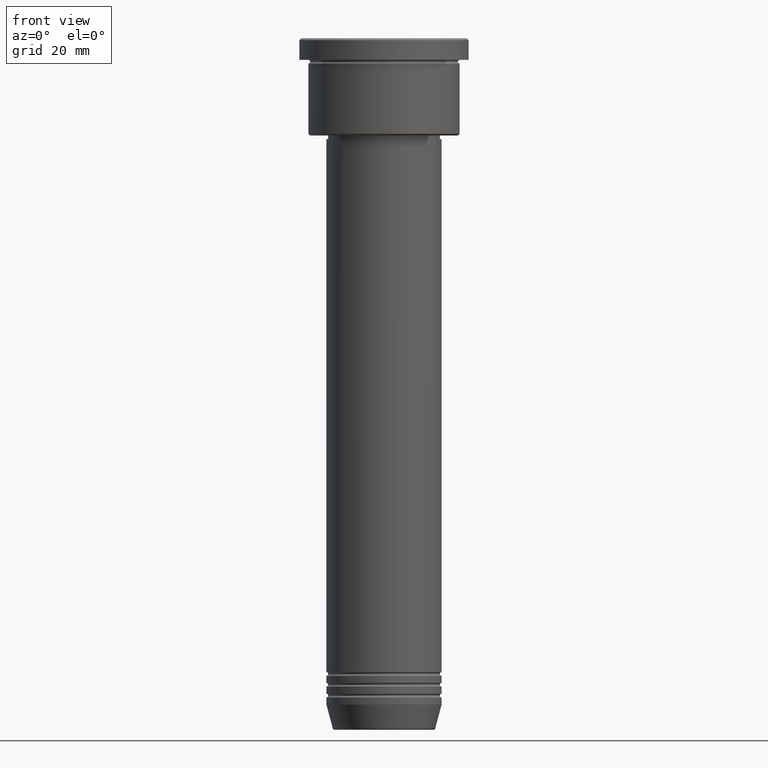
[diagram: clean part render]
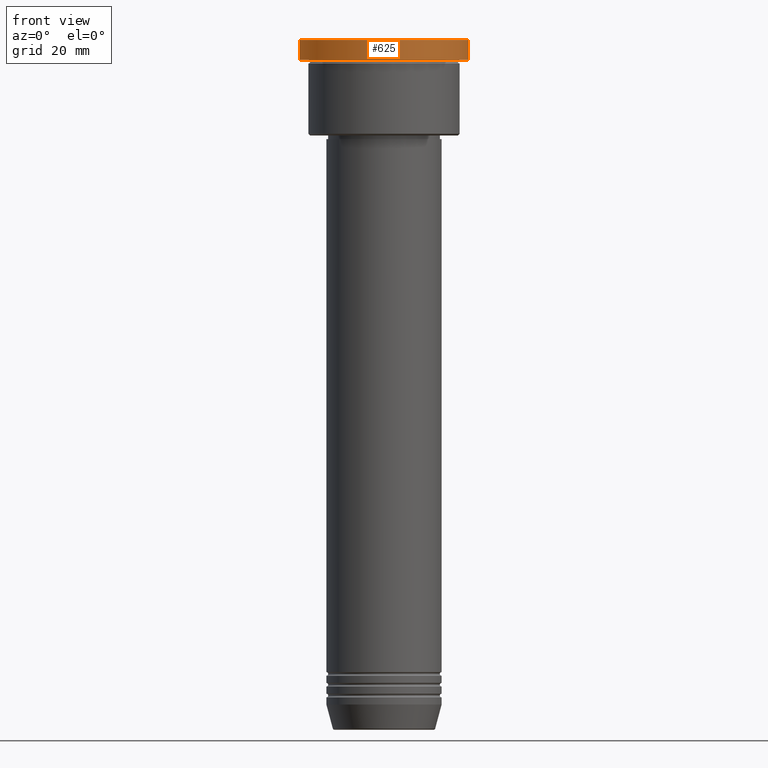
[diagram: same view with one face highlighted and labeled with its STEP entity id]
A machine part, front view. The second image highlights one B-rep face of the part: STEP entity #625.
In plain terms, the highlighted cylindrical surface (partial cylindrical patch) has radius 23.5 mm, axis along (-0, -0, 1).
Its self-contained STEP definition (entity closure, byte-faithful):
#24 = DIRECTION ( 'NONE',  ( 1.000000000000000000, 0.000000000000000000, 0.000000000000000000 ) ) ;
#45 = CARTESIAN_POINT ( 'NONE',  ( 0.000000000000000000, 0.000000000000000000, 0.000000000000000000 ) ) ;
#77 = ORIENTED_EDGE ( 'NONE', *, *, #262, .T. ) ;
#138 = DIRECTION ( 'NONE',  ( -0.000000000000000000, -0.000000000000000000, 1.000000000000000000 ) ) ;
#139 = EDGE_CURVE ( 'NONE', #953, #1074, #1007, .T. ) ;
#174 = ORIENTED_EDGE ( 'NONE', *, *, #139, .T. ) ;
#184 = DIRECTION ( 'NONE',  ( -0.000000000000000000, -0.000000000000000000, 1.000000000000000000 ) ) ;
#189 = ORIENTED_EDGE ( 'NONE', *, *, #926, .F. ) ;
#215 = ORIENTED_EDGE ( 'NONE', *, *, #263, .T. ) ;
#223 = DIRECTION ( 'NONE',  ( 1.000000000000000000, 0.000000000000000000, 0.000000000000000000 ) ) ;
#247 = VECTOR ( 'NONE', #1121, 1000.000000000000000 ) ;
#262 = EDGE_CURVE ( 'NONE', #805, #953, #368, .T. ) ;
#263 = EDGE_CURVE ( 'NONE', #1074, #871, #1093, .T. ) ;
#267 = VECTOR ( 'NONE', #184, 1000.000000000000000 ) ;
#283 = AXIS2_PLACEMENT_3D ( 'NONE', #762, #584, #24 ) ;
#368 = CIRCLE ( 'NONE', #283, 23.50000000000000000 ) ;
#411 = CARTESIAN_POINT ( 'NONE',  ( -23.50000000000000000, 2.877919977996280320E-15, -5.999999999999994671 ) ) ;
#584 = DIRECTION ( 'NONE',  ( -0.000000000000000000, -0.000000000000000000, 1.000000000000000000 ) ) ;
#610 = CARTESIAN_POINT ( 'NONE',  ( 23.50000000000000000, 0.000000000000000000, -5.999999999999994671 ) ) ;
#625 = ADVANCED_FACE ( 'NONE', ( #774 ), #870, .T. ) ;
#668 = CARTESIAN_POINT ( 'NONE',  ( 0.000000000000000000, 0.000000000000000000, -0.5000000000000004441 ) ) ;
#748 = CARTESIAN_POINT ( 'NONE',  ( 23.50000000000000000, 0.000000000000000000, -0.5000000000000004441 ) ) ;
#761 = CARTESIAN_POINT ( 'NONE',  ( -23.50000000000000000, 2.877919977996280320E-15, 0.000000000000000000 ) ) ;
#762 = CARTESIAN_POINT ( 'NONE',  ( 0.000000000000000000, 0.000000000000000000, -5.999999999999994671 ) ) ;
#774 = FACE_OUTER_BOUND ( 'NONE', #1024, .T. ) ;
#789 = CARTESIAN_POINT ( 'NONE',  ( -23.50000000000000000, 2.877919977996280320E-15, -0.5000000000000004441 ) ) ;
#805 = VERTEX_POINT ( 'NONE', #411 ) ;
#868 = AXIS2_PLACEMENT_3D ( 'NONE', #668, #949, #223 ) ;
#870 = CYLINDRICAL_SURFACE ( 'NONE', #996, 23.50000000000000000 ) ;
#871 = VERTEX_POINT ( 'NONE', #789 ) ;
#926 = EDGE_CURVE ( 'NONE', #805, #871, #1028, .T. ) ;
#949 = DIRECTION ( 'NONE',  ( 0.000000000000000000, 0.000000000000000000, -1.000000000000000000 ) ) ;
#953 = VERTEX_POINT ( 'NONE', #610 ) ;
#996 = AXIS2_PLACEMENT_3D ( 'NONE', #45, #138, #1139 ) ;
#1007 = LINE ( 'NONE', #1094, #267 ) ;
#1024 = EDGE_LOOP ( 'NONE', ( #189, #77, #174, #215 ) ) ;
#1028 = LINE ( 'NONE', #761, #247 ) ;
#1074 = VERTEX_POINT ( 'NONE', #748 ) ;
#1093 = CIRCLE ( 'NONE', #868, 23.50000000000000000 ) ;
#1094 = CARTESIAN_POINT ( 'NONE',  ( 23.50000000000000000, 0.000000000000000000, 0.000000000000000000 ) ) ;
#1121 = DIRECTION ( 'NONE',  ( -0.000000000000000000, -0.000000000000000000, 1.000000000000000000 ) ) ;
#1139 = DIRECTION ( 'NONE',  ( 1.000000000000000000, 0.000000000000000000, 0.000000000000000000 ) ) ;